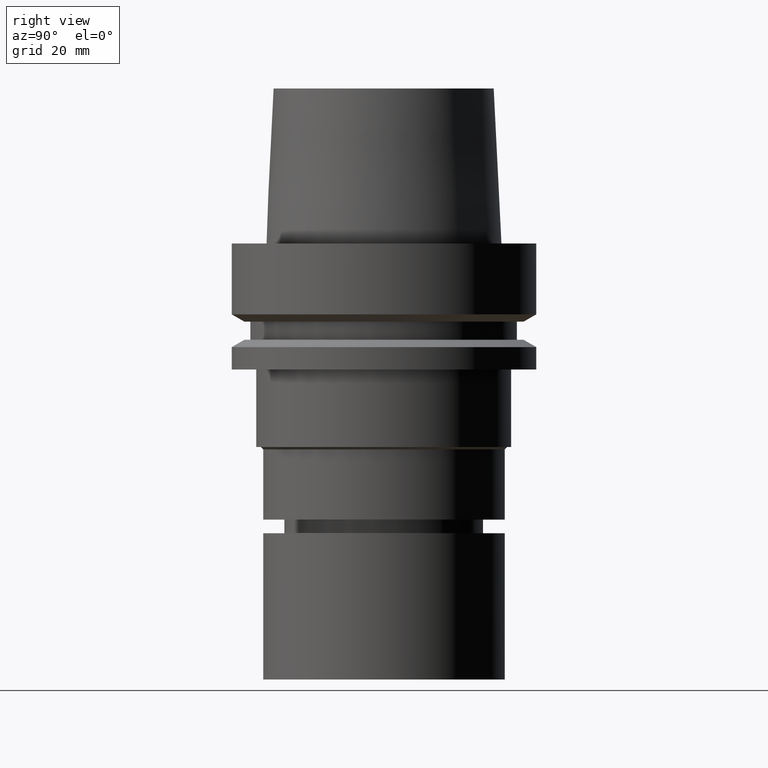
[diagram: clean part render]
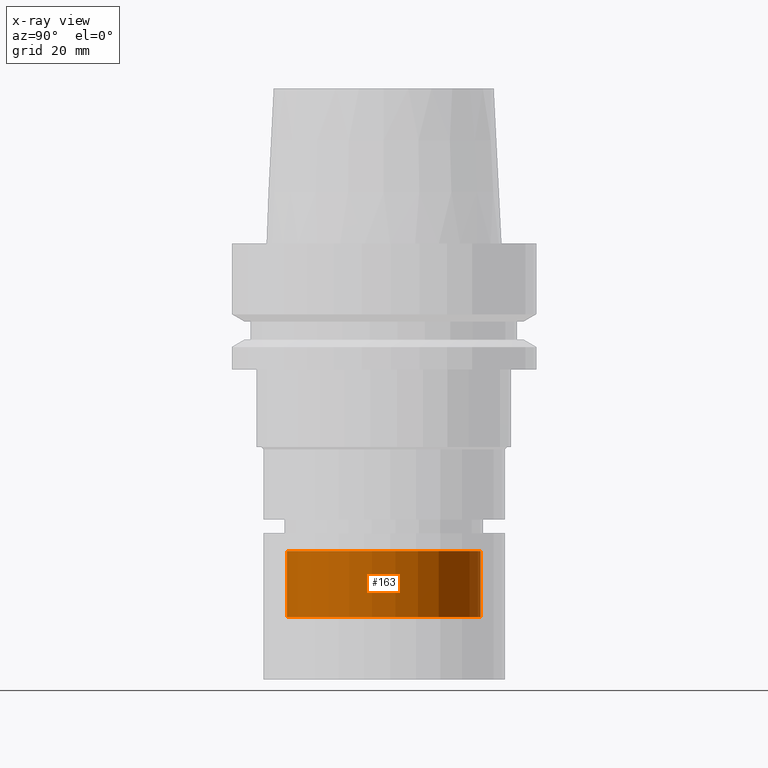
[diagram: x-ray — body ghosted, one internal face saturated and labeled with its STEP entity id]
A machine part, right view, then the same camera in x-ray: the body is ghosted and one INTERNAL B-rep face — a face not visible from any outside direction — is saturated and labeled: STEP entity #163.
In plain terms, the highlighted cylindrical surface (bore or boss wall) has radius 20 mm, axis along (-0, -0, 1).
Its self-contained STEP definition (entity closure, byte-faithful):
#95=EDGE_CURVE('Unnamed[1]',#243,#243,#244,.T.);
#163=ADVANCED_FACE('Unnamed[1]',(#345,#346),#347,.T.);
#176=EDGE_CURVE('Unnamed[1]',#367,#367,#368,.T.);
#243=VERTEX_POINT('',#449);
#244=CIRCLE('',#450,20.0);
#345=FACE_BOUND('',#576,.T.);
#346=FACE_BOUND('',#577,.T.);
#347=CYLINDRICAL_SURFACE('',#578,20.0);
#367=VERTEX_POINT('',#603);
#368=CIRCLE('',#604,20.0000000000001);
#449=CARTESIAN_POINT('',(3.88826323563546E-015,20.0,-63.5001575693925));
#450=AXIS2_PLACEMENT_3D('',#678,#679,#680);
#576=EDGE_LOOP('',(#787));
#577=EDGE_LOOP('',(#788));
#578=AXIS2_PLACEMENT_3D('',#789,#790,#791);
#603=CARTESIAN_POINT('',(4.72069158037225E-015,20.0000000000001,-77.0947441116734));
#604=AXIS2_PLACEMENT_3D('',#813,#814,#815);
#678=CARTESIAN_POINT('',(3.88826323563546E-015,7.77652647127091E-015,-63.5001575693925));
#679=DIRECTION('',(-6.12323399573677E-017,-1.22464679914735E-016,1.0));
#680=DIRECTION('',(-1.23259516440783E-032,1.0,1.22464679914735E-016));
#787=ORIENTED_EDGE('',*,*,#95,.F.);
#788=ORIENTED_EDGE('',*,*,#176,.T.);
#789=CARTESIAN_POINT('',(4.30447740800386E-015,8.60895481600771E-015,-70.297450840533));
#790=DIRECTION('',(-6.12323399573677E-017,-1.22464679914735E-016,1.0));
#791=DIRECTION('',(-1.23259516440783E-032,1.0,1.22464679914735E-016));
#813=CARTESIAN_POINT('',(4.72069158037225E-015,9.4413831607445E-015,-77.0947441116734));
#814=DIRECTION('',(-6.12323399573677E-017,-1.22464679914735E-016,1.0));
#815=DIRECTION('',(-1.23259516440783E-032,1.0,1.22464679914735E-016));